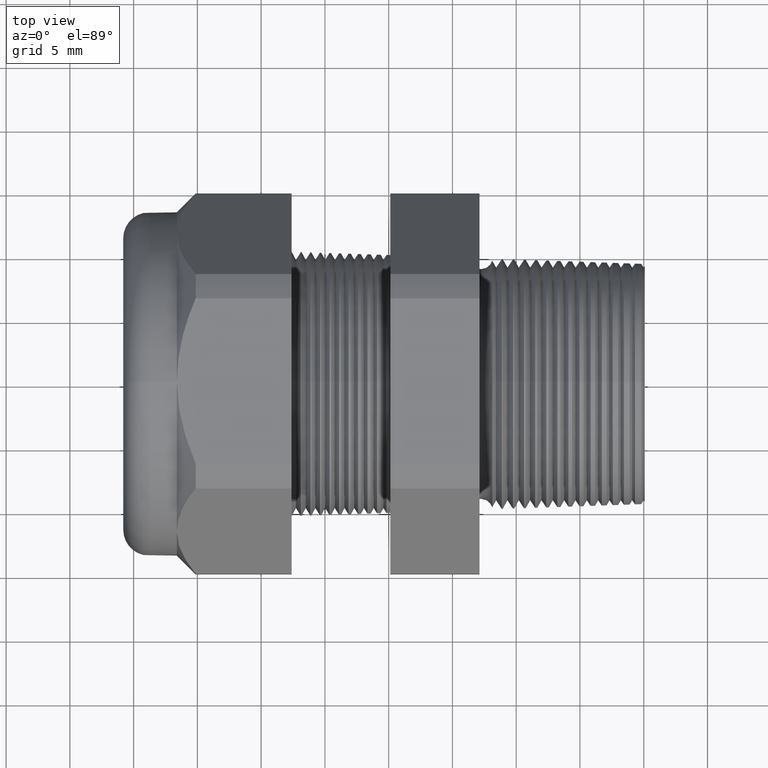
[diagram: clean part render]
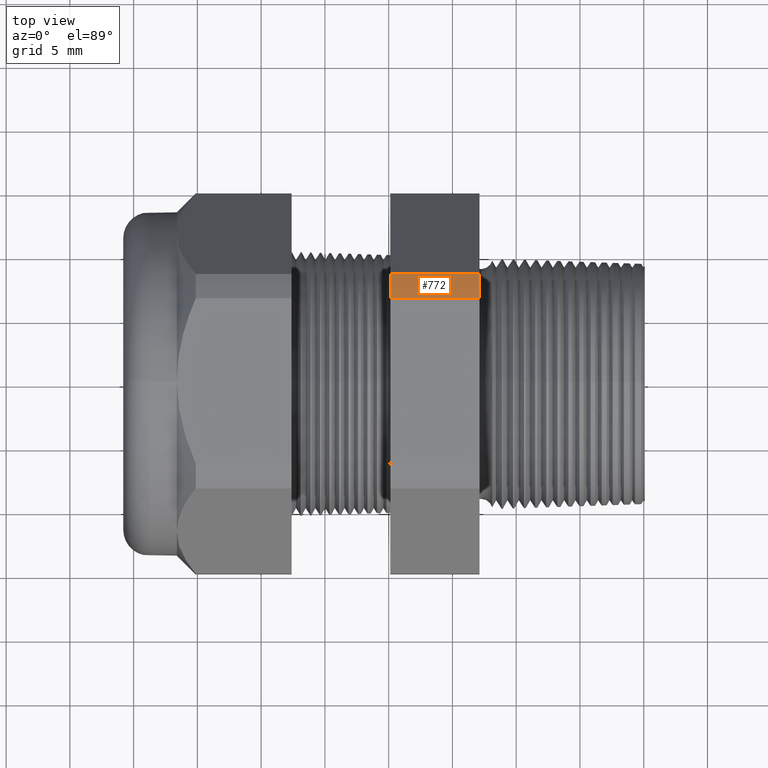
[diagram: same view with one face highlighted and labeled with its STEP entity id]
A machine part, top view. The second image highlights one B-rep face of the part: STEP entity #772.
In plain terms, the highlighted cylindrical surface (partial cylindrical patch) has radius 14.9428 mm, axis along (-1, 0, 0).
Its self-contained STEP definition (entity closure, byte-faithful):
#603 = VERTEX_POINT ( 'NONE', #2762 ) ;
#605 = EDGE_CURVE ( 'NONE', #603, #606, #2761, .T. ) ;
#606 = VERTEX_POINT ( 'NONE', #2756 ) ;
#666 = EDGE_CURVE ( 'NONE', #746, #693, #2895, .T. ) ;
#693 = VERTEX_POINT ( 'NONE', #2975 ) ;
#746 = VERTEX_POINT ( 'NONE', #3026 ) ;
#770 = EDGE_CURVE ( 'NONE', #603, #693, #3063, .T. ) ;
#772 = ADVANCED_FACE ( 'NONE', ( #3059 ), #3057, .T. ) ;
#773 = EDGE_LOOP ( 'NONE', ( #774, #775, #776, #778 ) ) ;
#774 = ORIENTED_EDGE ( 'NONE', *, *, #770, .T. ) ;
#775 = ORIENTED_EDGE ( 'NONE', *, *, #666, .F. ) ;
#776 = ORIENTED_EDGE ( 'NONE', *, *, #777, .F. ) ;
#777 = EDGE_CURVE ( 'NONE', #606, #746, #3058, .T. ) ;
#778 = ORIENTED_EDGE ( 'NONE', *, *, #605, .F. ) ;
#2756 = CARTESIAN_POINT ( 'NONE',  ( -0.3099999999999998300, 0.2553368167734533200, 0.5299999999999999200 ) ) ;
#2757 = DIRECTION ( 'NONE',  ( 0.0000000000000000000, 0.0000000000000000000, -1.000000000000000000 ) ) ;
#2758 = DIRECTION ( 'NONE',  ( 1.000000000000000000, 0.0000000000000000000, 0.0000000000000000000 ) ) ;
#2759 = CARTESIAN_POINT ( 'NONE',  ( -0.3100000000000000000, 0.0000000000000000000, 0.0000000000000000000 ) ) ;
#2760 = AXIS2_PLACEMENT_3D ( 'NONE', #2759, #2758, #2757 ) ;
#2761 = CIRCLE ( 'NONE', #2760, 0.5882999999999999300 ) ;
#2762 = CARTESIAN_POINT ( 'NONE',  ( -0.3099999999999998300, 0.3313250556190259800, 0.4861281698472629800 ) ) ;
#2892 = DIRECTION ( 'NONE',  ( 0.0000000000000000000, 0.0000000000000000000, 1.000000000000000000 ) ) ;
#2893 = DIRECTION ( 'NONE',  ( -1.000000000000000000, 0.0000000000000000000, 0.0000000000000000000 ) ) ;
#2894 = AXIS2_PLACEMENT_3D ( 'NONE', #2900, #2893, #2892 ) ;
#2895 = CIRCLE ( 'NONE', #2894, 0.5882999999999999300 ) ;
#2900 = CARTESIAN_POINT ( 'NONE',  ( -0.5855905511811022600, 0.0000000000000000000, 0.0000000000000000000 ) ) ;
#2975 = CARTESIAN_POINT ( 'NONE',  ( -0.5855905511811020400, 0.3313250556190259800, 0.4861281698472629800 ) ) ;
#3026 = CARTESIAN_POINT ( 'NONE',  ( -0.5855905511811020400, 0.2553368167734533200, 0.5299999999999999200 ) ) ;
#3050 = DIRECTION ( 'NONE',  ( -1.000000000000000000, 0.0000000000000000000, 0.0000000000000000000 ) ) ;
#3051 = VECTOR ( 'NONE', #3050, 39.37007874015748100 ) ;
#3052 = CARTESIAN_POINT ( 'NONE',  ( 0.2000000000000000400, 0.2553368167734533200, 0.5299999999999999200 ) ) ;
#3053 = DIRECTION ( 'NONE',  ( 0.0000000000000000000, 0.0000000000000000000, 1.000000000000000000 ) ) ;
#3054 = DIRECTION ( 'NONE',  ( -1.000000000000000000, 0.0000000000000000000, 0.0000000000000000000 ) ) ;
#3055 = CARTESIAN_POINT ( 'NONE',  ( 0.2000000000000000400, 0.0000000000000000000, 0.0000000000000000000 ) ) ;
#3056 = AXIS2_PLACEMENT_3D ( 'NONE', #3055, #3054, #3053 ) ;
#3057 = CYLINDRICAL_SURFACE ( 'NONE', #3056, 0.5882999999999999300 ) ;
#3058 = LINE ( 'NONE', #3052, #3051 ) ;
#3059 = FACE_OUTER_BOUND ( 'NONE', #773, .T. ) ;
#3060 = DIRECTION ( 'NONE',  ( -1.000000000000000000, 0.0000000000000000000, 0.0000000000000000000 ) ) ;
#3061 = VECTOR ( 'NONE', #3060, 39.37007874015748100 ) ;
#3062 = CARTESIAN_POINT ( 'NONE',  ( 0.2000000000000000400, 0.3313250556190259800, 0.4861281698472629800 ) ) ;
#3063 = LINE ( 'NONE', #3062, #3061 ) ;